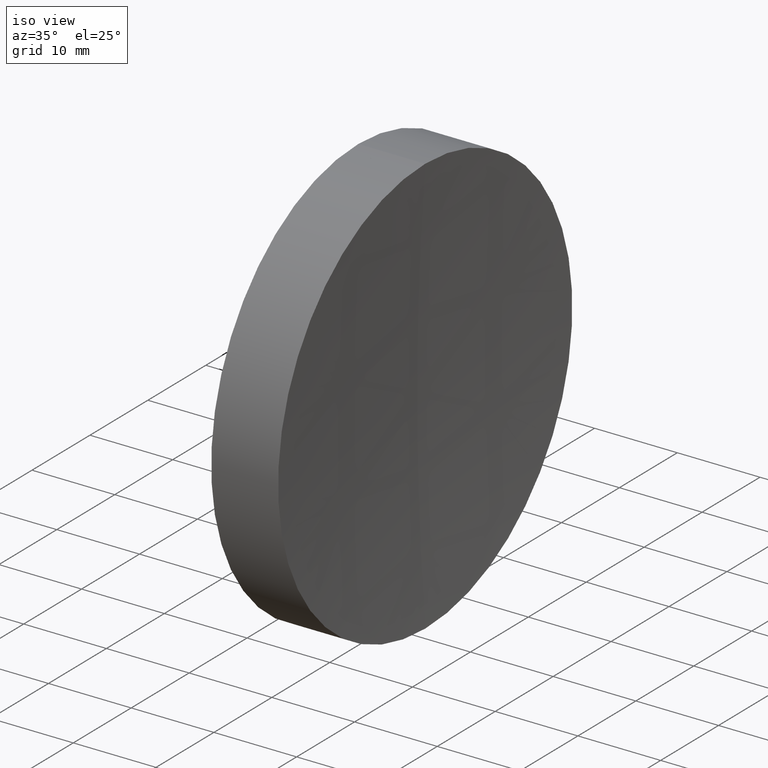
[diagram: clean part render]
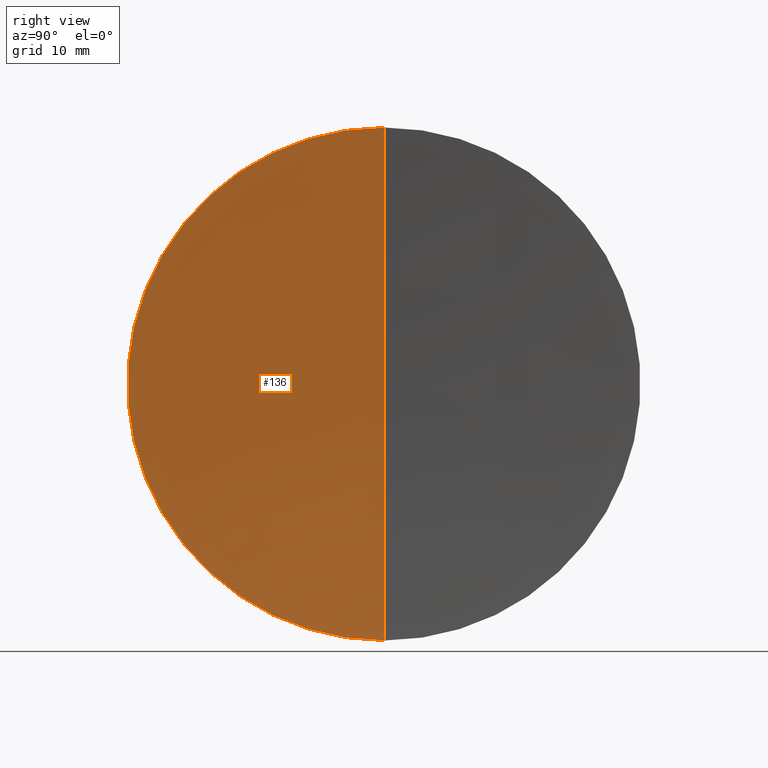
[diagram: tour spotlight — one face highlighted and labeled with its STEP entity id]
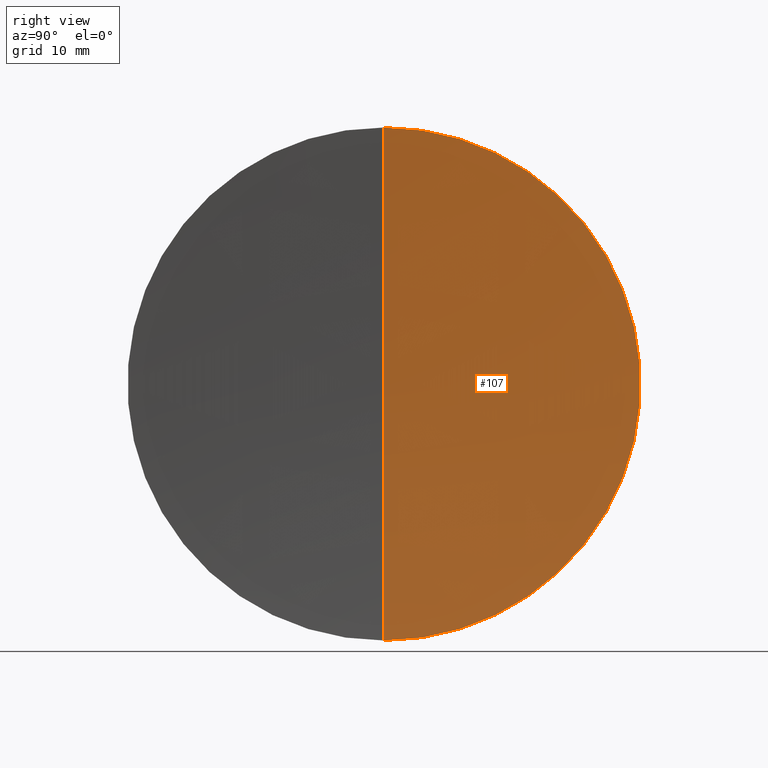
[diagram: tour spotlight — one face highlighted and labeled with its STEP entity id]
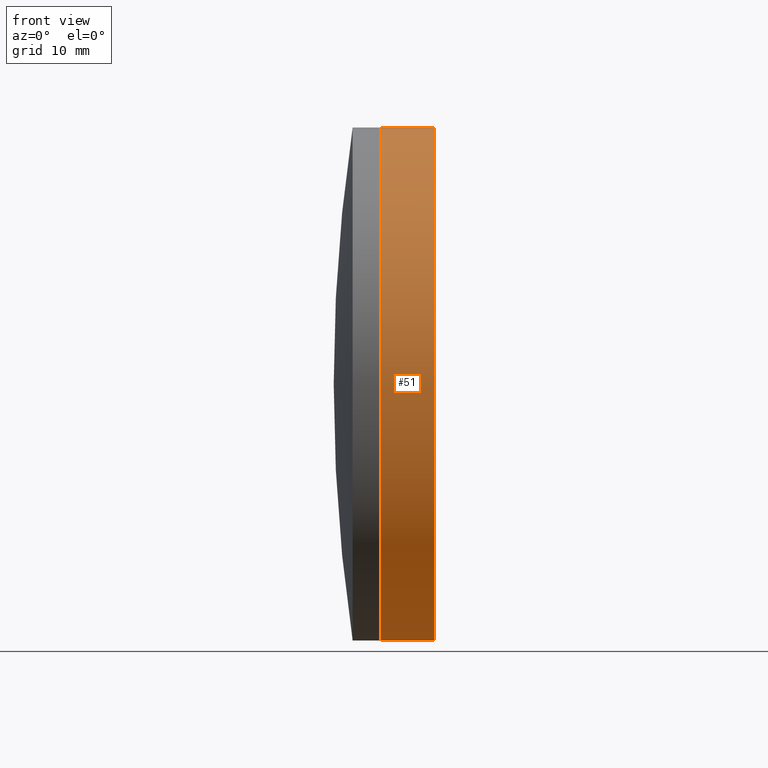
[diagram: tour spotlight — one face highlighted and labeled with its STEP entity id]
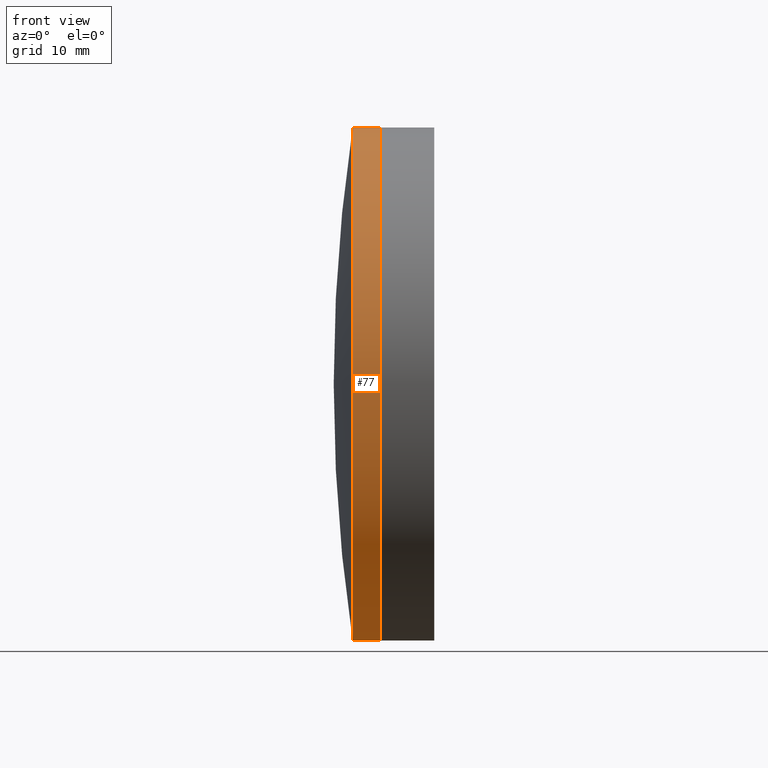
[diagram: tour spotlight — one face highlighted and labeled with its STEP entity id]
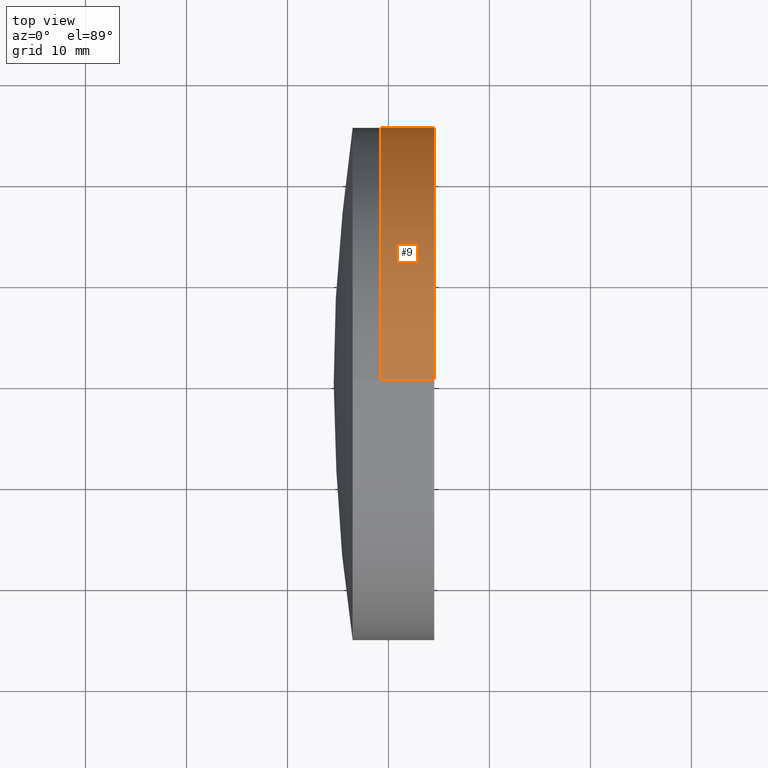
[diagram: tour spotlight — one face highlighted and labeled with its STEP entity id]
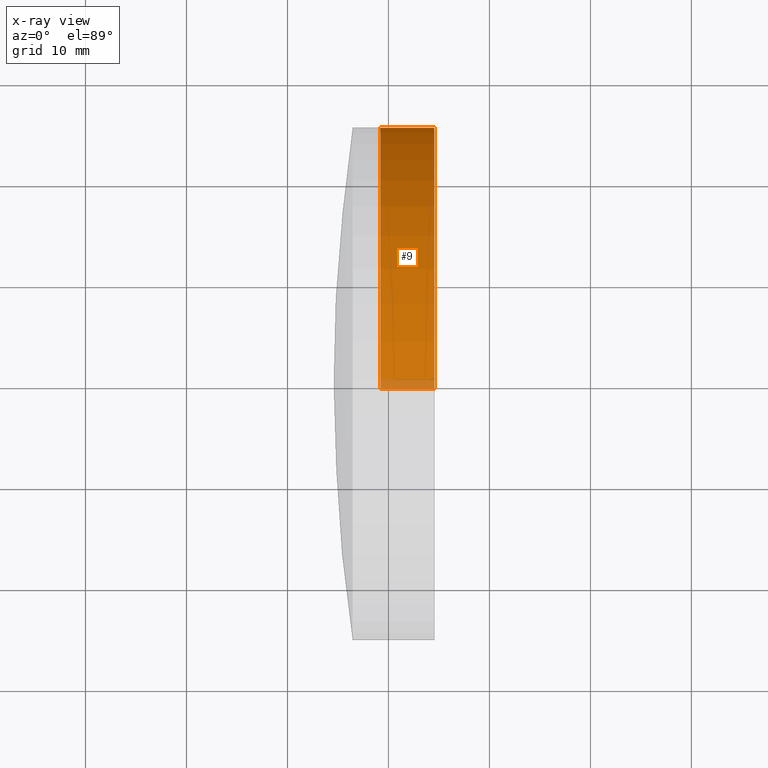
[diagram: x-ray of the same camera — body ghosted, this tour face saturated]
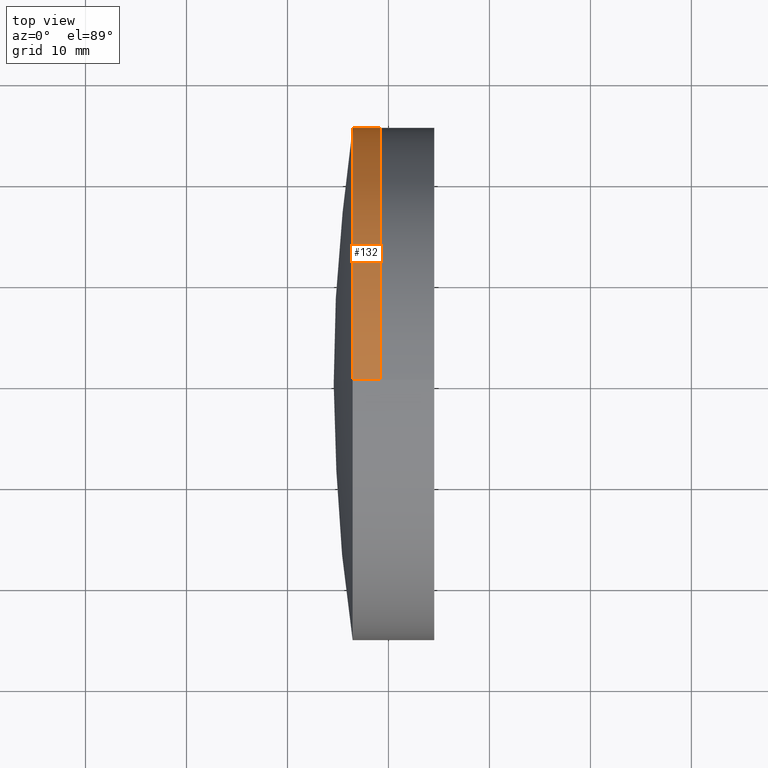
[diagram: tour spotlight — one face highlighted and labeled with its STEP entity id]
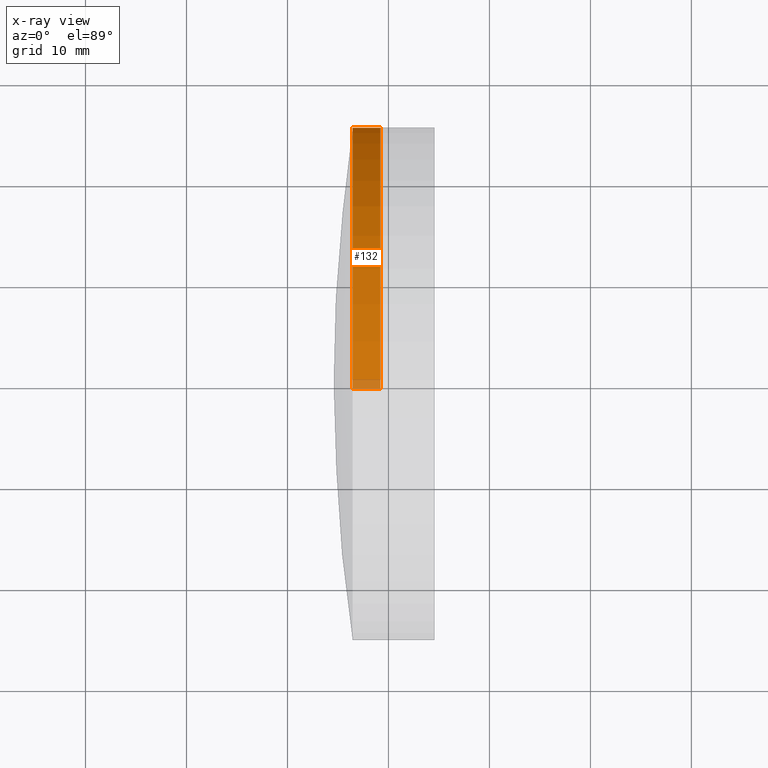
[diagram: x-ray of the same camera — body ghosted, this tour face saturated]
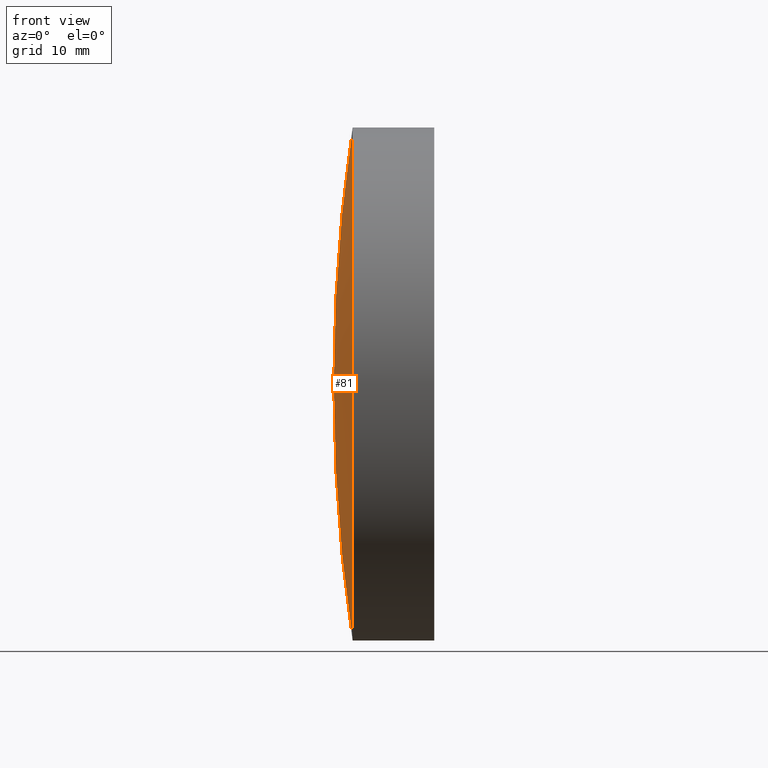
[diagram: tour spotlight — one face highlighted and labeled with its STEP entity id]
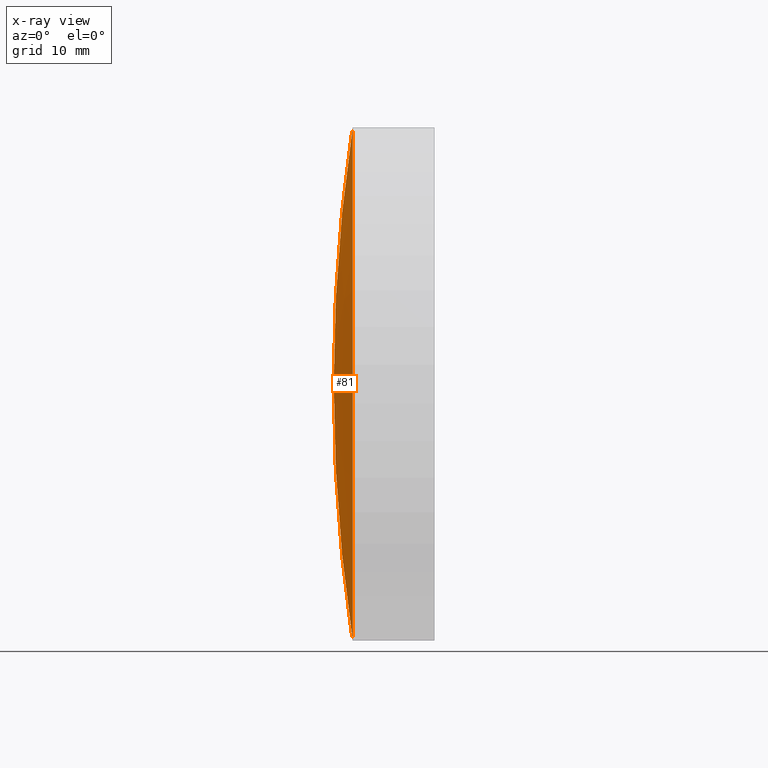
[diagram: x-ray of the same camera — body ghosted, this tour face saturated]
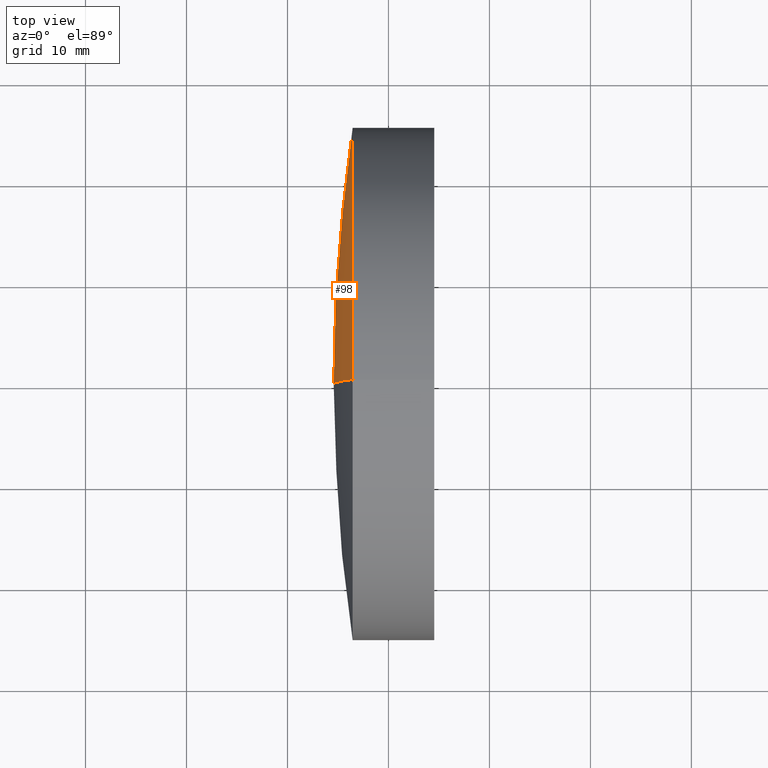
[diagram: tour spotlight — one face highlighted and labeled with its STEP entity id]
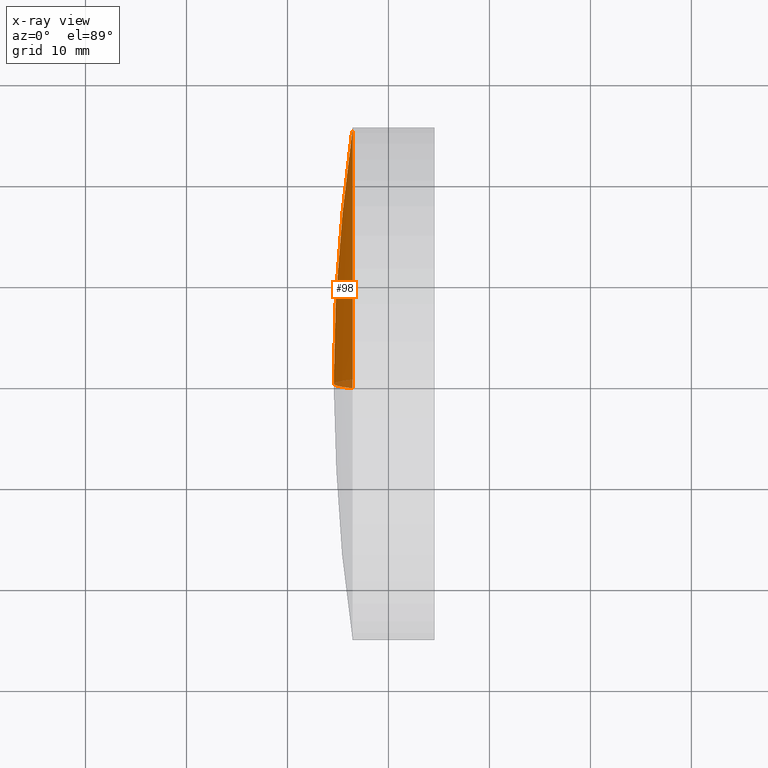
[diagram: x-ray of the same camera — body ghosted, this tour face saturated]
A machine part: a face-by-face anatomy tour. The part has 12 B-rep faces; the first image is the clean iso view, then the 8 largest visible faces are spotlighted one at a time (largest first), each with its STEP entity span.

Face 1 — right view, entity #136. In plain terms, the highlighted spherical surface has radius 336 mm.
Definition (entity closure, byte-faithful):
#3 = VERTEX_POINT ( 'NONE', #123 ) ;
#27 = DIRECTION ( 'NONE',  ( 0.0000000000000000000, 0.0000000000000000000, 1.000000000000000000 ) ) ;
#35 = ORIENTED_EDGE ( 'NONE', *, *, #193, .F. ) ;
#78 = VERTEX_POINT ( 'NONE', #256 ) ;
#86 = AXIS2_PLACEMENT_3D ( 'NONE', #257, #182, #122 ) ;
#115 = VERTEX_POINT ( 'NONE', #204 ) ;
#116 = EDGE_CURVE ( 'NONE', #115, #3, #338, .T. ) ;
#122 = DIRECTION ( 'NONE',  ( 0.0000000000000000000, 1.224646799147353200E-016, -1.000000000000000000 ) ) ;
#123 = CARTESIAN_POINT ( 'NONE',  ( 323.5779002687384600, 0.0000000000000000000, -2.057406622567553600E-014 ) ) ;
#124 = AXIS2_PLACEMENT_3D ( 'NONE', #334, #177, #160 ) ;
#136 = ADVANCED_FACE ( 'NONE', ( #331 ), #335, .F. ) ;
#141 = DIRECTION ( 'NONE',  ( 0.0000000000000000000, 0.0000000000000000000, -1.000000000000000000 ) ) ;
#150 = ORIENTED_EDGE ( 'NONE', *, *, #205, .T. ) ;
#160 = DIRECTION ( 'NONE',  ( 0.0000000000000000000, 0.0000000000000000000, 1.000000000000000000 ) ) ;
#170 = AXIS2_PLACEMENT_3D ( 'NONE', #254, #189, #27 ) ;
#177 = DIRECTION ( 'NONE',  ( -1.000000000000000000, -0.0000000000000000000, -0.0000000000000000000 ) ) ;
#182 = DIRECTION ( 'NONE',  ( 0.0000000000000000000, -1.000000000000000000, -1.224646799147353200E-016 ) ) ;
#186 = AXIS2_PLACEMENT_3D ( 'NONE', #311, #267, #141 ) ;
#189 = DIRECTION ( 'NONE',  ( 0.0000000000000000000, 1.000000000000000000, -0.0000000000000000000 ) ) ;
#193 = EDGE_CURVE ( 'NONE', #78, #115, #252, .T. ) ;
#204 = CARTESIAN_POINT ( 'NONE',  ( 324.5393353243428600, -3.110602869834300900E-015, 25.40000000000019400 ) ) ;
#205 = EDGE_CURVE ( 'NONE', #78, #3, #242, .T. ) ;
#242 = CIRCLE ( 'NONE', #170, 336.0000000000000600 ) ;
#252 = CIRCLE ( 'NONE', #124, 25.39999999999999900 ) ;
#254 = CARTESIAN_POINT ( 'NONE',  ( 659.5779002687385200, 0.0000000000000000000, 0.0000000000000000000 ) ) ;
#256 = CARTESIAN_POINT ( 'NONE',  ( 324.5393353243428600, 0.0000000000000000000, -25.40000000000019400 ) ) ;
#257 = CARTESIAN_POINT ( 'NONE',  ( 659.5779002687385200, 0.0000000000000000000, 0.0000000000000000000 ) ) ;
#267 = DIRECTION ( 'NONE',  ( -0.0000000000000000000, -1.000000000000000000, -0.0000000000000000000 ) ) ;
#271 = ORIENTED_EDGE ( 'NONE', *, *, #116, .F. ) ;
#274 = EDGE_LOOP ( 'NONE', ( #271, #35, #150 ) ) ;
#311 = CARTESIAN_POINT ( 'NONE',  ( 659.5779002687385200, 0.0000000000000000000, 0.0000000000000000000 ) ) ;
#331 = FACE_OUTER_BOUND ( 'NONE', #274, .T. ) ;
#334 = CARTESIAN_POINT ( 'NONE',  ( 324.5393353243428600, 0.0000000000000000000, 0.0000000000000000000 ) ) ;
#335 = SPHERICAL_SURFACE ( 'NONE', #186, 336.0000000000000600 ) ;
#338 = CIRCLE ( 'NONE', #86, 336.0000000000000600 ) ;

Face 2 — right view, entity #107. In plain terms, the highlighted spherical surface has radius 336 mm.
Definition (entity closure, byte-faithful):
#3 = VERTEX_POINT ( 'NONE', #123 ) ;
#27 = DIRECTION ( 'NONE',  ( 0.0000000000000000000, 0.0000000000000000000, 1.000000000000000000 ) ) ;
#32 = ORIENTED_EDGE ( 'NONE', *, *, #205, .F. ) ;
#42 = DIRECTION ( 'NONE',  ( 0.0000000000000000000, 0.0000000000000000000, -1.000000000000000000 ) ) ;
#45 = ORIENTED_EDGE ( 'NONE', *, *, #116, .T. ) ;
#78 = VERTEX_POINT ( 'NONE', #256 ) ;
#86 = AXIS2_PLACEMENT_3D ( 'NONE', #257, #182, #122 ) ;
#102 = CARTESIAN_POINT ( 'NONE',  ( 324.5393353243428600, 0.0000000000000000000, 0.0000000000000000000 ) ) ;
#103 = AXIS2_PLACEMENT_3D ( 'NONE', #102, #278, #184 ) ;
#107 = ADVANCED_FACE ( 'NONE', ( #151 ), #337, .F. ) ;
#115 = VERTEX_POINT ( 'NONE', #204 ) ;
#116 = EDGE_CURVE ( 'NONE', #115, #3, #338, .T. ) ;
#122 = DIRECTION ( 'NONE',  ( 0.0000000000000000000, 1.224646799147353200E-016, -1.000000000000000000 ) ) ;
#123 = CARTESIAN_POINT ( 'NONE',  ( 323.5779002687384600, 0.0000000000000000000, -2.057406622567553600E-014 ) ) ;
#126 = CIRCLE ( 'NONE', #103, 25.39999999999999900 ) ;
#151 = FACE_OUTER_BOUND ( 'NONE', #309, .T. ) ;
#157 = EDGE_CURVE ( 'NONE', #115, #78, #126, .T. ) ;
#170 = AXIS2_PLACEMENT_3D ( 'NONE', #254, #189, #27 ) ;
#182 = DIRECTION ( 'NONE',  ( 0.0000000000000000000, -1.000000000000000000, -1.224646799147353200E-016 ) ) ;
#184 = DIRECTION ( 'NONE',  ( 0.0000000000000000000, 0.0000000000000000000, 1.000000000000000000 ) ) ;
#189 = DIRECTION ( 'NONE',  ( 0.0000000000000000000, 1.000000000000000000, -0.0000000000000000000 ) ) ;
#204 = CARTESIAN_POINT ( 'NONE',  ( 324.5393353243428600, -3.110602869834300900E-015, 25.40000000000019400 ) ) ;
#205 = EDGE_CURVE ( 'NONE', #78, #3, #242, .T. ) ;
#215 = DIRECTION ( 'NONE',  ( -0.0000000000000000000, -1.000000000000000000, -0.0000000000000000000 ) ) ;
#242 = CIRCLE ( 'NONE', #170, 336.0000000000000600 ) ;
#254 = CARTESIAN_POINT ( 'NONE',  ( 659.5779002687385200, 0.0000000000000000000, 0.0000000000000000000 ) ) ;
#256 = CARTESIAN_POINT ( 'NONE',  ( 324.5393353243428600, 0.0000000000000000000, -25.40000000000019400 ) ) ;
#257 = CARTESIAN_POINT ( 'NONE',  ( 659.5779002687385200, 0.0000000000000000000, 0.0000000000000000000 ) ) ;
#278 = DIRECTION ( 'NONE',  ( -1.000000000000000000, -0.0000000000000000000, -0.0000000000000000000 ) ) ;
#294 = ORIENTED_EDGE ( 'NONE', *, *, #157, .F. ) ;
#309 = EDGE_LOOP ( 'NONE', ( #294, #45, #32 ) ) ;
#322 = CARTESIAN_POINT ( 'NONE',  ( 659.5779002687385200, 0.0000000000000000000, 0.0000000000000000000 ) ) ;
#337 = SPHERICAL_SURFACE ( 'NONE', #339, 336.0000000000000600 ) ;
#338 = CIRCLE ( 'NONE', #86, 336.0000000000000600 ) ;
#339 = AXIS2_PLACEMENT_3D ( 'NONE', #322, #215, #42 ) ;

Face 3 — front view, entity #51. In plain terms, the highlighted cylindrical surface (partial cylindrical patch) has radius 25.4 mm, axis along (-1, -0, -0).
Definition (entity closure, byte-faithful):
#20 = VECTOR ( 'NONE', #265, 1000.000000000000000 ) ;
#23 = EDGE_CURVE ( 'NONE', #115, #275, #194, .T. ) ;
#36 = CARTESIAN_POINT ( 'NONE',  ( 319.1968714545806200, 0.0000000000000000000, -25.39999999999997700 ) ) ;
#39 = AXIS2_PLACEMENT_3D ( 'NONE', #56, #289, #83 ) ;
#49 = DIRECTION ( 'NONE',  ( -1.000000000000000000, -0.0000000000000000000, -0.0000000000000000000 ) ) ;
#51 = ADVANCED_FACE ( 'NONE', ( #162 ), #134, .T. ) ;
#56 = CARTESIAN_POINT ( 'NONE',  ( -0.5519199926577972300, 0.0000000000000000000, 0.0000000000000000000 ) ) ;
#64 = ORIENTED_EDGE ( 'NONE', *, *, #197, .F. ) ;
#78 = VERTEX_POINT ( 'NONE', #256 ) ;
#83 = DIRECTION ( 'NONE',  ( 0.0000000000000000000, 0.0000000000000000000, 1.000000000000000000 ) ) ;
#90 = CIRCLE ( 'NONE', #131, 25.40000000000000200 ) ;
#101 = ORIENTED_EDGE ( 'NONE', *, *, #193, .T. ) ;
#115 = VERTEX_POINT ( 'NONE', #204 ) ;
#118 = CARTESIAN_POINT ( 'NONE',  ( -0.5519199926577972300, 0.0000000000000000000, 25.39999999999999900 ) ) ;
#119 = ORIENTED_EDGE ( 'NONE', *, *, #210, .F. ) ;
#124 = AXIS2_PLACEMENT_3D ( 'NONE', #334, #177, #160 ) ;
#131 = AXIS2_PLACEMENT_3D ( 'NONE', #280, #133, #307 ) ;
#133 = DIRECTION ( 'NONE',  ( -1.000000000000000000, -0.0000000000000000000, -0.0000000000000000000 ) ) ;
#134 = CYLINDRICAL_SURFACE ( 'NONE', #39, 25.39999999999999900 ) ;
#160 = DIRECTION ( 'NONE',  ( 0.0000000000000000000, 0.0000000000000000000, 1.000000000000000000 ) ) ;
#162 = FACE_OUTER_BOUND ( 'NONE', #268, .T. ) ;
#168 = CARTESIAN_POINT ( 'NONE',  ( 319.1968714545806200, -3.110602869834274100E-015, 25.40000000000000600 ) ) ;
#171 = CARTESIAN_POINT ( 'NONE',  ( -0.5519199926577972300, 3.110602869834276900E-015, -25.39999999999999900 ) ) ;
#177 = DIRECTION ( 'NONE',  ( -1.000000000000000000, -0.0000000000000000000, -0.0000000000000000000 ) ) ;
#193 = EDGE_CURVE ( 'NONE', #78, #115, #252, .T. ) ;
#194 = LINE ( 'NONE', #118, #20 ) ;
#197 = EDGE_CURVE ( 'NONE', #279, #275, #90, .T. ) ;
#204 = CARTESIAN_POINT ( 'NONE',  ( 324.5393353243428600, -3.110602869834300900E-015, 25.40000000000019400 ) ) ;
#210 = EDGE_CURVE ( 'NONE', #78, #279, #230, .T. ) ;
#230 = LINE ( 'NONE', #171, #301 ) ;
#252 = CIRCLE ( 'NONE', #124, 25.39999999999999900 ) ;
#256 = CARTESIAN_POINT ( 'NONE',  ( 324.5393353243428600, 0.0000000000000000000, -25.40000000000019400 ) ) ;
#265 = DIRECTION ( 'NONE',  ( -1.000000000000000000, -0.0000000000000000000, -0.0000000000000000000 ) ) ;
#268 = EDGE_LOOP ( 'NONE', ( #119, #101, #287, #64 ) ) ;
#275 = VERTEX_POINT ( 'NONE', #168 ) ;
#279 = VERTEX_POINT ( 'NONE', #36 ) ;
#280 = CARTESIAN_POINT ( 'NONE',  ( 319.1968714545806200, 0.0000000000000000000, 0.0000000000000000000 ) ) ;
#287 = ORIENTED_EDGE ( 'NONE', *, *, #23, .T. ) ;
#289 = DIRECTION ( 'NONE',  ( -1.000000000000000000, -0.0000000000000000000, -0.0000000000000000000 ) ) ;
#301 = VECTOR ( 'NONE', #49, 1000.000000000000000 ) ;
#307 = DIRECTION ( 'NONE',  ( 0.0000000000000000000, 0.0000000000000000000, 1.000000000000000000 ) ) ;
#334 = CARTESIAN_POINT ( 'NONE',  ( 324.5393353243428600, 0.0000000000000000000, 0.0000000000000000000 ) ) ;

Face 4 — front view, entity #77. In plain terms, the highlighted cylindrical surface (partial cylindrical patch) has radius 25.4 mm, axis along (-1, -0, -0).
Definition (entity closure, byte-faithful):
#8 = VERTEX_POINT ( 'NONE', #92 ) ;
#17 = DIRECTION ( 'NONE',  ( 0.0000000000000000000, 0.0000000000000000000, 1.000000000000000000 ) ) ;
#22 = CARTESIAN_POINT ( 'NONE',  ( -0.8160621761658039000, 0.0000000000000000000, 0.0000000000000000000 ) ) ;
#31 = ORIENTED_EDGE ( 'NONE', *, *, #144, .F. ) ;
#40 = ORIENTED_EDGE ( 'NONE', *, *, #183, .F. ) ;
#46 = CARTESIAN_POINT ( 'NONE',  ( 316.4529020951019900, 0.0000000000000000000, 0.0000000000000000000 ) ) ;
#58 = AXIS2_PLACEMENT_3D ( 'NONE', #22, #112, #264 ) ;
#61 = ORIENTED_EDGE ( 'NONE', *, *, #285, .T. ) ;
#77 = ADVANCED_FACE ( 'NONE', ( #149 ), #327, .T. ) ;
#79 = CIRCLE ( 'NONE', #298, 25.40000000000002300 ) ;
#87 = CARTESIAN_POINT ( 'NONE',  ( -0.8160621761658039000, 0.0000000000000000000, 25.40000000000002300 ) ) ;
#92 = CARTESIAN_POINT ( 'NONE',  ( 316.4529020951019900, 0.0000000000000000000, -25.39999999999998400 ) ) ;
#94 = VERTEX_POINT ( 'NONE', #235 ) ;
#108 = VECTOR ( 'NONE', #321, 1000.000000000000000 ) ;
#112 = DIRECTION ( 'NONE',  ( -1.000000000000000000, -0.0000000000000000000, -0.0000000000000000000 ) ) ;
#120 = CARTESIAN_POINT ( 'NONE',  ( 319.1968714545806200, 0.0000000000000000000, 25.40000000000002300 ) ) ;
#135 = LINE ( 'NONE', #206, #310 ) ;
#144 = EDGE_CURVE ( 'NONE', #8, #203, #79, .T. ) ;
#149 = FACE_OUTER_BOUND ( 'NONE', #159, .T. ) ;
#159 = EDGE_LOOP ( 'NONE', ( #40, #61, #300, #31 ) ) ;
#183 = EDGE_CURVE ( 'NONE', #94, #8, #135, .T. ) ;
#199 = DIRECTION ( 'NONE',  ( -1.000000000000000000, -0.0000000000000000000, -0.0000000000000000000 ) ) ;
#203 = VERTEX_POINT ( 'NONE', #234 ) ;
#206 = CARTESIAN_POINT ( 'NONE',  ( -0.8160621761658039000, 3.110602869834280000E-015, -25.40000000000002300 ) ) ;
#232 = DIRECTION ( 'NONE',  ( -1.000000000000000000, -0.0000000000000000000, -0.0000000000000000000 ) ) ;
#234 = CARTESIAN_POINT ( 'NONE',  ( 316.4529020951019900, -3.110602869834275700E-015, 25.40000000000001300 ) ) ;
#235 = CARTESIAN_POINT ( 'NONE',  ( 319.1968714545806200, 3.110602869834280000E-015, -25.40000000000002300 ) ) ;
#240 = EDGE_CURVE ( 'NONE', #318, #203, #340, .T. ) ;
#249 = DIRECTION ( 'NONE',  ( -1.000000000000000000, -0.0000000000000000000, -0.0000000000000000000 ) ) ;
#264 = DIRECTION ( 'NONE',  ( 0.0000000000000000000, 0.0000000000000000000, 1.000000000000000000 ) ) ;
#285 = EDGE_CURVE ( 'NONE', #94, #318, #286, .T. ) ;
#286 = CIRCLE ( 'NONE', #304, 25.40000000000002300 ) ;
#298 = AXIS2_PLACEMENT_3D ( 'NONE', #46, #232, #17 ) ;
#300 = ORIENTED_EDGE ( 'NONE', *, *, #240, .T. ) ;
#304 = AXIS2_PLACEMENT_3D ( 'NONE', #332, #199, #344 ) ;
#310 = VECTOR ( 'NONE', #249, 1000.000000000000000 ) ;
#318 = VERTEX_POINT ( 'NONE', #120 ) ;
#321 = DIRECTION ( 'NONE',  ( -1.000000000000000000, -0.0000000000000000000, -0.0000000000000000000 ) ) ;
#327 = CYLINDRICAL_SURFACE ( 'NONE', #58, 25.40000000000002300 ) ;
#332 = CARTESIAN_POINT ( 'NONE',  ( 319.1968714545806200, 0.0000000000000000000, 0.0000000000000000000 ) ) ;
#340 = LINE ( 'NONE', #87, #108 ) ;
#344 = DIRECTION ( 'NONE',  ( 0.0000000000000000000, 0.0000000000000000000, 1.000000000000000000 ) ) ;

Face 5 — top view, entity #9. An x-ray twin of the same camera follows (body ghosted, this face saturated) — the face is partly hidden behind the body. In plain terms, the highlighted cylindrical surface (partial cylindrical patch) has radius 25.4 mm, axis along (-1, -0, -0).
Definition (entity closure, byte-faithful):
#9 = ADVANCED_FACE ( 'NONE', ( #251 ), #209, .T. ) ;
#20 = VECTOR ( 'NONE', #265, 1000.000000000000000 ) ;
#23 = EDGE_CURVE ( 'NONE', #115, #275, #194, .T. ) ;
#29 = ORIENTED_EDGE ( 'NONE', *, *, #222, .F. ) ;
#36 = CARTESIAN_POINT ( 'NONE',  ( 319.1968714545806200, 0.0000000000000000000, -25.39999999999997700 ) ) ;
#49 = DIRECTION ( 'NONE',  ( -1.000000000000000000, -0.0000000000000000000, -0.0000000000000000000 ) ) ;
#55 = ORIENTED_EDGE ( 'NONE', *, *, #23, .F. ) ;
#59 = DIRECTION ( 'NONE',  ( -1.000000000000000000, -0.0000000000000000000, -0.0000000000000000000 ) ) ;
#78 = VERTEX_POINT ( 'NONE', #256 ) ;
#95 = EDGE_LOOP ( 'NONE', ( #100, #111, #29, #55 ) ) ;
#100 = ORIENTED_EDGE ( 'NONE', *, *, #157, .T. ) ;
#102 = CARTESIAN_POINT ( 'NONE',  ( 324.5393353243428600, 0.0000000000000000000, 0.0000000000000000000 ) ) ;
#103 = AXIS2_PLACEMENT_3D ( 'NONE', #102, #278, #184 ) ;
#111 = ORIENTED_EDGE ( 'NONE', *, *, #210, .T. ) ;
#115 = VERTEX_POINT ( 'NONE', #204 ) ;
#118 = CARTESIAN_POINT ( 'NONE',  ( -0.5519199926577972300, 0.0000000000000000000, 25.39999999999999900 ) ) ;
#121 = DIRECTION ( 'NONE',  ( 0.0000000000000000000, 0.0000000000000000000, 1.000000000000000000 ) ) ;
#126 = CIRCLE ( 'NONE', #103, 25.39999999999999900 ) ;
#146 = CARTESIAN_POINT ( 'NONE',  ( 319.1968714545806200, 0.0000000000000000000, 0.0000000000000000000 ) ) ;
#157 = EDGE_CURVE ( 'NONE', #115, #78, #126, .T. ) ;
#168 = CARTESIAN_POINT ( 'NONE',  ( 319.1968714545806200, -3.110602869834274100E-015, 25.40000000000000600 ) ) ;
#171 = CARTESIAN_POINT ( 'NONE',  ( -0.5519199926577972300, 3.110602869834276900E-015, -25.39999999999999900 ) ) ;
#184 = DIRECTION ( 'NONE',  ( 0.0000000000000000000, 0.0000000000000000000, 1.000000000000000000 ) ) ;
#190 = DIRECTION ( 'NONE',  ( 0.0000000000000000000, 0.0000000000000000000, 1.000000000000000000 ) ) ;
#194 = LINE ( 'NONE', #118, #20 ) ;
#204 = CARTESIAN_POINT ( 'NONE',  ( 324.5393353243428600, -3.110602869834300900E-015, 25.40000000000019400 ) ) ;
#209 = CYLINDRICAL_SURFACE ( 'NONE', #273, 25.39999999999999900 ) ;
#210 = EDGE_CURVE ( 'NONE', #78, #279, #230, .T. ) ;
#213 = AXIS2_PLACEMENT_3D ( 'NONE', #146, #291, #121 ) ;
#222 = EDGE_CURVE ( 'NONE', #275, #279, #330, .T. ) ;
#225 = CARTESIAN_POINT ( 'NONE',  ( -0.5519199926577972300, 0.0000000000000000000, 0.0000000000000000000 ) ) ;
#230 = LINE ( 'NONE', #171, #301 ) ;
#251 = FACE_OUTER_BOUND ( 'NONE', #95, .T. ) ;
#256 = CARTESIAN_POINT ( 'NONE',  ( 324.5393353243428600, 0.0000000000000000000, -25.40000000000019400 ) ) ;
#265 = DIRECTION ( 'NONE',  ( -1.000000000000000000, -0.0000000000000000000, -0.0000000000000000000 ) ) ;
#273 = AXIS2_PLACEMENT_3D ( 'NONE', #225, #59, #190 ) ;
#275 = VERTEX_POINT ( 'NONE', #168 ) ;
#278 = DIRECTION ( 'NONE',  ( -1.000000000000000000, -0.0000000000000000000, -0.0000000000000000000 ) ) ;
#279 = VERTEX_POINT ( 'NONE', #36 ) ;
#291 = DIRECTION ( 'NONE',  ( -1.000000000000000000, -0.0000000000000000000, -0.0000000000000000000 ) ) ;
#301 = VECTOR ( 'NONE', #49, 1000.000000000000000 ) ;
#330 = CIRCLE ( 'NONE', #213, 25.40000000000000200 ) ;

Face 6 — top view, entity #132. An x-ray twin of the same camera follows (body ghosted, this face saturated) — the face is partly hidden behind the body. In plain terms, the highlighted cylindrical surface (partial cylindrical patch) has radius 25.4 mm, axis along (-1, -0, -0).
Definition (entity closure, byte-faithful):
#5 = EDGE_CURVE ( 'NONE', #203, #8, #295, .T. ) ;
#6 = AXIS2_PLACEMENT_3D ( 'NONE', #253, #281, #106 ) ;
#8 = VERTEX_POINT ( 'NONE', #92 ) ;
#13 = ORIENTED_EDGE ( 'NONE', *, *, #5, .F. ) ;
#16 = DIRECTION ( 'NONE',  ( 0.0000000000000000000, 0.0000000000000000000, 1.000000000000000000 ) ) ;
#24 = ORIENTED_EDGE ( 'NONE', *, *, #183, .T. ) ;
#63 = CIRCLE ( 'NONE', #6, 25.40000000000002300 ) ;
#80 = DIRECTION ( 'NONE',  ( -1.000000000000000000, -0.0000000000000000000, -0.0000000000000000000 ) ) ;
#87 = CARTESIAN_POINT ( 'NONE',  ( -0.8160621761658039000, 0.0000000000000000000, 25.40000000000002300 ) ) ;
#92 = CARTESIAN_POINT ( 'NONE',  ( 316.4529020951019900, 0.0000000000000000000, -25.39999999999998400 ) ) ;
#94 = VERTEX_POINT ( 'NONE', #235 ) ;
#106 = DIRECTION ( 'NONE',  ( 0.0000000000000000000, 0.0000000000000000000, 1.000000000000000000 ) ) ;
#108 = VECTOR ( 'NONE', #321, 1000.000000000000000 ) ;
#120 = CARTESIAN_POINT ( 'NONE',  ( 319.1968714545806200, 0.0000000000000000000, 25.40000000000002300 ) ) ;
#132 = ADVANCED_FACE ( 'NONE', ( #187 ), #342, .T. ) ;
#135 = LINE ( 'NONE', #206, #310 ) ;
#174 = ORIENTED_EDGE ( 'NONE', *, *, #240, .F. ) ;
#183 = EDGE_CURVE ( 'NONE', #94, #8, #135, .T. ) ;
#187 = FACE_OUTER_BOUND ( 'NONE', #303, .T. ) ;
#191 = AXIS2_PLACEMENT_3D ( 'NONE', #347, #80, #16 ) ;
#201 = CARTESIAN_POINT ( 'NONE',  ( 316.4529020951019900, 0.0000000000000000000, 0.0000000000000000000 ) ) ;
#203 = VERTEX_POINT ( 'NONE', #234 ) ;
#206 = CARTESIAN_POINT ( 'NONE',  ( -0.8160621761658039000, 3.110602869834280000E-015, -25.40000000000002300 ) ) ;
#234 = CARTESIAN_POINT ( 'NONE',  ( 316.4529020951019900, -3.110602869834275700E-015, 25.40000000000001300 ) ) ;
#235 = CARTESIAN_POINT ( 'NONE',  ( 319.1968714545806200, 3.110602869834280000E-015, -25.40000000000002300 ) ) ;
#240 = EDGE_CURVE ( 'NONE', #318, #203, #340, .T. ) ;
#249 = DIRECTION ( 'NONE',  ( -1.000000000000000000, -0.0000000000000000000, -0.0000000000000000000 ) ) ;
#253 = CARTESIAN_POINT ( 'NONE',  ( 319.1968714545806200, 0.0000000000000000000, 0.0000000000000000000 ) ) ;
#281 = DIRECTION ( 'NONE',  ( -1.000000000000000000, -0.0000000000000000000, -0.0000000000000000000 ) ) ;
#295 = CIRCLE ( 'NONE', #302, 25.40000000000002300 ) ;
#302 = AXIS2_PLACEMENT_3D ( 'NONE', #201, #317, #319 ) ;
#303 = EDGE_LOOP ( 'NONE', ( #315, #24, #13, #174 ) ) ;
#310 = VECTOR ( 'NONE', #249, 1000.000000000000000 ) ;
#312 = EDGE_CURVE ( 'NONE', #318, #94, #63, .T. ) ;
#315 = ORIENTED_EDGE ( 'NONE', *, *, #312, .T. ) ;
#317 = DIRECTION ( 'NONE',  ( -1.000000000000000000, -0.0000000000000000000, -0.0000000000000000000 ) ) ;
#318 = VERTEX_POINT ( 'NONE', #120 ) ;
#319 = DIRECTION ( 'NONE',  ( 0.0000000000000000000, 0.0000000000000000000, 1.000000000000000000 ) ) ;
#321 = DIRECTION ( 'NONE',  ( -1.000000000000000000, -0.0000000000000000000, -0.0000000000000000000 ) ) ;
#340 = LINE ( 'NONE', #87, #108 ) ;
#342 = CYLINDRICAL_SURFACE ( 'NONE', #191, 25.40000000000002300 ) ;
#347 = CARTESIAN_POINT ( 'NONE',  ( -0.8160621761658039000, 0.0000000000000000000, 0.0000000000000000000 ) ) ;

Face 7 — front view, entity #81. An x-ray twin of the same camera follows (body ghosted, this face saturated) — the face is partly hidden behind the body. In plain terms, the highlighted spherical surface has radius 172.98 mm.
Definition (entity closure, byte-faithful):
#1 = ORIENTED_EDGE ( 'NONE', *, *, #144, .T. ) ;
#8 = VERTEX_POINT ( 'NONE', #92 ) ;
#12 = DIRECTION ( 'NONE',  ( 0.0000000000000000000, -1.000000000000000000, -1.224646799147353200E-016 ) ) ;
#15 = AXIS2_PLACEMENT_3D ( 'NONE', #54, #231, #284 ) ;
#17 = DIRECTION ( 'NONE',  ( 0.0000000000000000000, 0.0000000000000000000, 1.000000000000000000 ) ) ;
#28 = CARTESIAN_POINT ( 'NONE',  ( 487.5579002687381400, 0.0000000000000000000, 2.454820155283582600E-014 ) ) ;
#43 = AXIS2_PLACEMENT_3D ( 'NONE', #28, #12, #104 ) ;
#46 = CARTESIAN_POINT ( 'NONE',  ( 316.4529020951019900, 0.0000000000000000000, 0.0000000000000000000 ) ) ;
#54 = CARTESIAN_POINT ( 'NONE',  ( 487.5579002687381400, 0.0000000000000000000, 2.454820155283582600E-014 ) ) ;
#76 = CARTESIAN_POINT ( 'NONE',  ( 314.5779002687381200, 0.0000000000000000000, 1.395623138701036400E-014 ) ) ;
#79 = CIRCLE ( 'NONE', #298, 25.40000000000002300 ) ;
#81 = ADVANCED_FACE ( 'NONE', ( #326 ), #140, .T. ) ;
#89 = AXIS2_PLACEMENT_3D ( 'NONE', #226, #219, #238 ) ;
#92 = CARTESIAN_POINT ( 'NONE',  ( 316.4529020951019900, 0.0000000000000000000, -25.39999999999998400 ) ) ;
#104 = DIRECTION ( 'NONE',  ( 0.0000000000000000000, 1.224646799147353200E-016, -1.000000000000000000 ) ) ;
#140 = SPHERICAL_SURFACE ( 'NONE', #15, 172.9800000000000500 ) ;
#144 = EDGE_CURVE ( 'NONE', #8, #203, #79, .T. ) ;
#166 = CIRCLE ( 'NONE', #43, 172.9800000000000500 ) ;
#203 = VERTEX_POINT ( 'NONE', #234 ) ;
#216 = ORIENTED_EDGE ( 'NONE', *, *, #270, .F. ) ;
#219 = DIRECTION ( 'NONE',  ( 0.0000000000000000000, 1.000000000000000000, -0.0000000000000000000 ) ) ;
#226 = CARTESIAN_POINT ( 'NONE',  ( 487.5579002687381400, 0.0000000000000000000, 2.454820155283582600E-014 ) ) ;
#231 = DIRECTION ( 'NONE',  ( -0.0000000000000000000, -1.000000000000000000, -0.0000000000000000000 ) ) ;
#232 = DIRECTION ( 'NONE',  ( -1.000000000000000000, -0.0000000000000000000, -0.0000000000000000000 ) ) ;
#234 = CARTESIAN_POINT ( 'NONE',  ( 316.4529020951019900, -3.110602869834275700E-015, 25.40000000000001300 ) ) ;
#238 = DIRECTION ( 'NONE',  ( 0.0000000000000000000, 0.0000000000000000000, 1.000000000000000000 ) ) ;
#244 = EDGE_CURVE ( 'NONE', #203, #283, #166, .T. ) ;
#260 = ORIENTED_EDGE ( 'NONE', *, *, #244, .T. ) ;
#263 = EDGE_LOOP ( 'NONE', ( #1, #260, #216 ) ) ;
#270 = EDGE_CURVE ( 'NONE', #8, #283, #299, .T. ) ;
#283 = VERTEX_POINT ( 'NONE', #76 ) ;
#284 = DIRECTION ( 'NONE',  ( 0.0000000000000000000, 0.0000000000000000000, -1.000000000000000000 ) ) ;
#298 = AXIS2_PLACEMENT_3D ( 'NONE', #46, #232, #17 ) ;
#299 = CIRCLE ( 'NONE', #89, 172.9800000000000500 ) ;
#326 = FACE_OUTER_BOUND ( 'NONE', #263, .T. ) ;

Face 8 — top view, entity #98. An x-ray twin of the same camera follows (body ghosted, this face saturated) — the face is partly hidden behind the body. In plain terms, the highlighted spherical surface has radius 172.98 mm.
Definition (entity closure, byte-faithful):
#5 = EDGE_CURVE ( 'NONE', #203, #8, #295, .T. ) ;
#8 = VERTEX_POINT ( 'NONE', #92 ) ;
#12 = DIRECTION ( 'NONE',  ( 0.0000000000000000000, -1.000000000000000000, -1.224646799147353200E-016 ) ) ;
#28 = CARTESIAN_POINT ( 'NONE',  ( 487.5579002687381400, 0.0000000000000000000, 2.454820155283582600E-014 ) ) ;
#43 = AXIS2_PLACEMENT_3D ( 'NONE', #28, #12, #104 ) ;
#53 = ORIENTED_EDGE ( 'NONE', *, *, #5, .T. ) ;
#57 = DIRECTION ( 'NONE',  ( -0.0000000000000000000, -1.000000000000000000, -0.0000000000000000000 ) ) ;
#76 = CARTESIAN_POINT ( 'NONE',  ( 314.5779002687381200, 0.0000000000000000000, 1.395623138701036400E-014 ) ) ;
#84 = CARTESIAN_POINT ( 'NONE',  ( 487.5579002687381400, 0.0000000000000000000, 2.454820155283582600E-014 ) ) ;
#88 = DIRECTION ( 'NONE',  ( 0.0000000000000000000, 0.0000000000000000000, -1.000000000000000000 ) ) ;
#89 = AXIS2_PLACEMENT_3D ( 'NONE', #226, #219, #238 ) ;
#92 = CARTESIAN_POINT ( 'NONE',  ( 316.4529020951019900, 0.0000000000000000000, -25.39999999999998400 ) ) ;
#98 = ADVANCED_FACE ( 'NONE', ( #142 ), #324, .T. ) ;
#104 = DIRECTION ( 'NONE',  ( 0.0000000000000000000, 1.224646799147353200E-016, -1.000000000000000000 ) ) ;
#125 = ORIENTED_EDGE ( 'NONE', *, *, #244, .F. ) ;
#129 = EDGE_LOOP ( 'NONE', ( #125, #53, #313 ) ) ;
#139 = AXIS2_PLACEMENT_3D ( 'NONE', #84, #57, #88 ) ;
#142 = FACE_OUTER_BOUND ( 'NONE', #129, .T. ) ;
#166 = CIRCLE ( 'NONE', #43, 172.9800000000000500 ) ;
#201 = CARTESIAN_POINT ( 'NONE',  ( 316.4529020951019900, 0.0000000000000000000, 0.0000000000000000000 ) ) ;
#203 = VERTEX_POINT ( 'NONE', #234 ) ;
#219 = DIRECTION ( 'NONE',  ( 0.0000000000000000000, 1.000000000000000000, -0.0000000000000000000 ) ) ;
#226 = CARTESIAN_POINT ( 'NONE',  ( 487.5579002687381400, 0.0000000000000000000, 2.454820155283582600E-014 ) ) ;
#234 = CARTESIAN_POINT ( 'NONE',  ( 316.4529020951019900, -3.110602869834275700E-015, 25.40000000000001300 ) ) ;
#238 = DIRECTION ( 'NONE',  ( 0.0000000000000000000, 0.0000000000000000000, 1.000000000000000000 ) ) ;
#244 = EDGE_CURVE ( 'NONE', #203, #283, #166, .T. ) ;
#270 = EDGE_CURVE ( 'NONE', #8, #283, #299, .T. ) ;
#283 = VERTEX_POINT ( 'NONE', #76 ) ;
#295 = CIRCLE ( 'NONE', #302, 25.40000000000002300 ) ;
#299 = CIRCLE ( 'NONE', #89, 172.9800000000000500 ) ;
#302 = AXIS2_PLACEMENT_3D ( 'NONE', #201, #317, #319 ) ;
#313 = ORIENTED_EDGE ( 'NONE', *, *, #270, .T. ) ;
#317 = DIRECTION ( 'NONE',  ( -1.000000000000000000, -0.0000000000000000000, -0.0000000000000000000 ) ) ;
#319 = DIRECTION ( 'NONE',  ( 0.0000000000000000000, 0.0000000000000000000, 1.000000000000000000 ) ) ;
#324 = SPHERICAL_SURFACE ( 'NONE', #139, 172.9800000000000500 ) ;